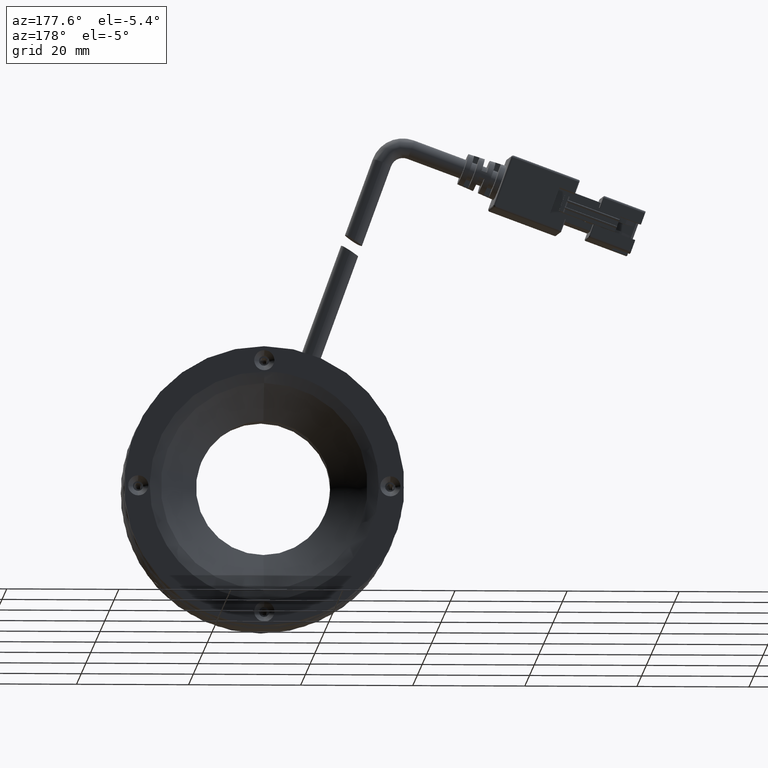
[diagram: clean part render]
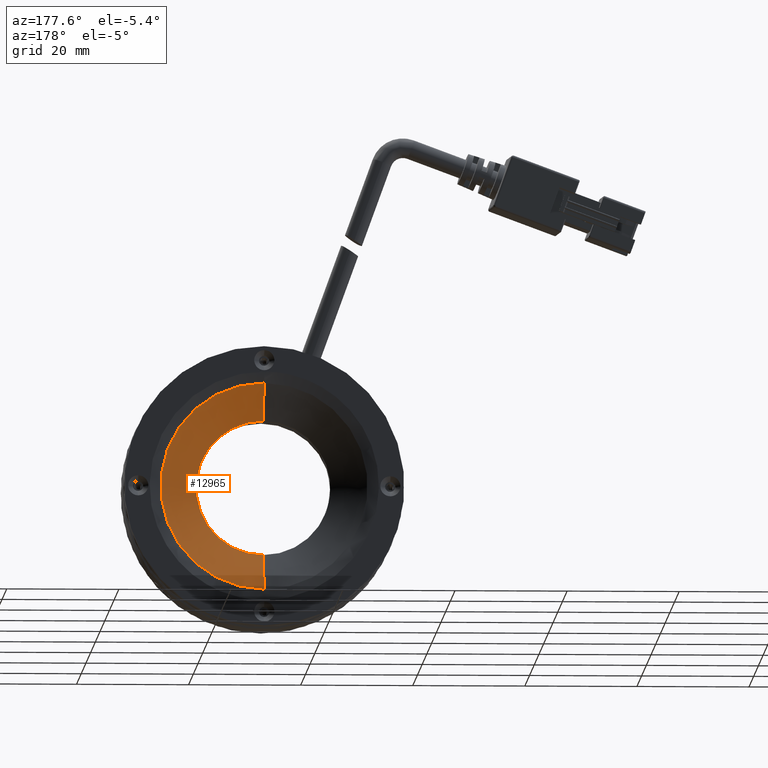
[diagram: same view with one face highlighted and labeled with its STEP entity id]
A machine part, auxiliary view. The second image highlights one B-rep face of the part: STEP entity #12965.
In plain terms, the highlighted conical surface has half-angle 60 deg.
Its self-contained STEP definition (entity closure, byte-faithful):
#128 = DIRECTION ( 'NONE',  ( 0.0000000000000000000, 1.000000000000000000, 0.0000000000000000000 ) ) ;
#531 = CARTESIAN_POINT ( 'NONE',  ( -9.648541418031049600, 11.61312220220840400, 95.01810575562159000 ) ) ;
#1281 = DIRECTION ( 'NONE',  ( -0.0000000000000000000, 1.000000000000000000, -0.0000000000000000000 ) ) ;
#6492 = DIRECTION ( 'NONE',  ( 0.0000000000000000000, 0.0000000000000000000, 1.000000000000000000 ) ) ;
#6748 = VECTOR ( 'NONE', #68591, 1000.000000000000000 ) ;
#7610 = AXIS2_PLACEMENT_3D ( 'NONE', #48765, #128, #6492 ) ;
#10605 = CARTESIAN_POINT ( 'NONE',  ( -9.648541418031049600, 11.61312220220840400, 95.01810575562159000 ) ) ;
#11959 = CONICAL_SURFACE ( 'NONE', #7610, 18.46499999999999600, 1.047197551196592300 ) ;
#12965 = ADVANCED_FACE ( 'NONE', ( #19592 ), #11959, .F. ) ;
#19012 = CARTESIAN_POINT ( 'NONE',  ( -9.648541418031047800, 7.880552711897425200, 64.55310575562157300 ) ) ;
#19418 = DIRECTION ( 'NONE',  ( 0.0000000000000000000, -1.000000000000000000, 0.0000000000000000000 ) ) ;
#19588 = ORIENTED_EDGE ( 'NONE', *, *, #69679, .F. ) ;
#19592 = FACE_OUTER_BOUND ( 'NONE', #41676, .T. ) ;
#19782 = VERTEX_POINT ( 'NONE', #10605 ) ;
#25005 = AXIS2_PLACEMENT_3D ( 'NONE', #55829, #19418, #61924 ) ;
#25034 = DIRECTION ( 'NONE',  ( 0.0000000000000000000, 0.5000000000000046600, 0.8660254037844359300 ) ) ;
#27442 = CIRCLE ( 'NONE', #25005, 18.46499999999999600 ) ;
#31823 = VECTOR ( 'NONE', #25034, 1000.000000000000000 ) ;
#35380 = CARTESIAN_POINT ( 'NONE',  ( -9.648541418031047800, 11.61312220220840400, 58.08810575562159100 ) ) ;
#37676 = CARTESIAN_POINT ( 'NONE',  ( -9.648541418031049600, 7.880552711897425200, 76.55310575562158700 ) ) ;
#39078 = LINE ( 'NONE', #62459, #6748 ) ;
#40094 = EDGE_CURVE ( 'NONE', #66028, #78712, #78051, .T. ) ;
#40109 = ORIENTED_EDGE ( 'NONE', *, *, #40094, .F. ) ;
#41676 = EDGE_LOOP ( 'NONE', ( #19588, #40109, #45018, #55438 ) ) ;
#43675 = EDGE_CURVE ( 'NONE', #56891, #19782, #27442, .T. ) ;
#43799 = DIRECTION ( 'NONE',  ( 0.0000000000000000000, 0.0000000000000000000, 1.000000000000000000 ) ) ;
#45018 = ORIENTED_EDGE ( 'NONE', *, *, #52821, .T. ) ;
#47929 = LINE ( 'NONE', #531, #31823 ) ;
#48765 = CARTESIAN_POINT ( 'NONE',  ( -9.648541418031049600, 11.61312220220840400, 76.55310575562158700 ) ) ;
#50851 = CARTESIAN_POINT ( 'NONE',  ( -9.648541418031049600, 7.880552711897425200, 88.55310575562158700 ) ) ;
#52821 = EDGE_CURVE ( 'NONE', #66028, #19782, #47929, .T. ) ;
#55438 = ORIENTED_EDGE ( 'NONE', *, *, #43675, .F. ) ;
#55829 = CARTESIAN_POINT ( 'NONE',  ( -9.648541418031049600, 11.61312220220840400, 76.55310575562158700 ) ) ;
#56891 = VERTEX_POINT ( 'NONE', #35380 ) ;
#61924 = DIRECTION ( 'NONE',  ( 0.0000000000000000000, 0.0000000000000000000, 1.000000000000000000 ) ) ;
#62459 = CARTESIAN_POINT ( 'NONE',  ( -9.648541418031047800, 11.61312220220840400, 58.08810575562159100 ) ) ;
#66028 = VERTEX_POINT ( 'NONE', #50851 ) ;
#68591 = DIRECTION ( 'NONE',  ( 1.060575238724903600E-016, 0.5000000000000046600, -0.8660254037844359300 ) ) ;
#69679 = EDGE_CURVE ( 'NONE', #78712, #56891, #39078, .T. ) ;
#71362 = AXIS2_PLACEMENT_3D ( 'NONE', #37676, #1281, #43799 ) ;
#78051 = CIRCLE ( 'NONE', #71362, 11.99999999999999600 ) ;
#78712 = VERTEX_POINT ( 'NONE', #19012 ) ;